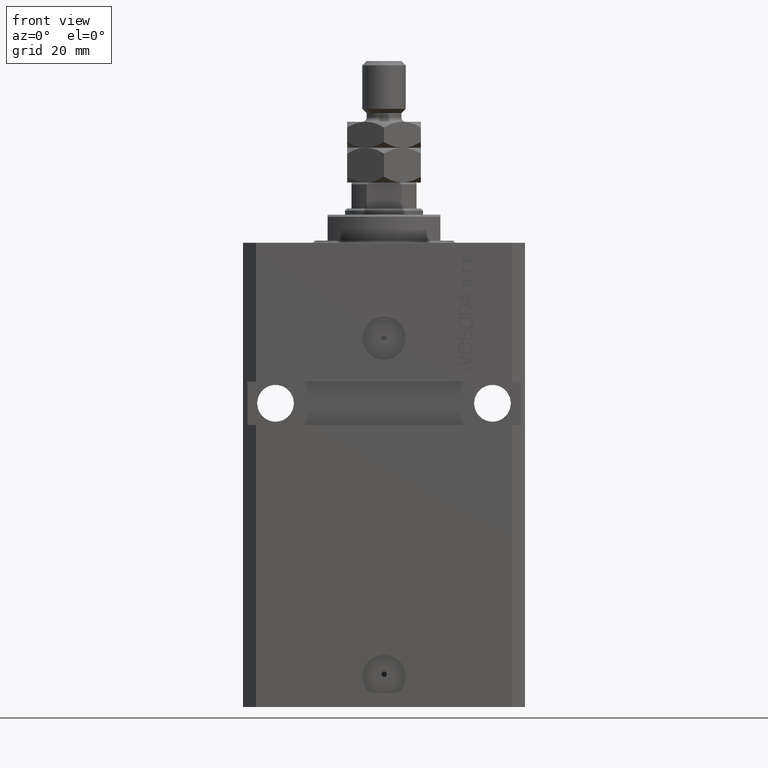
[diagram: clean part render]
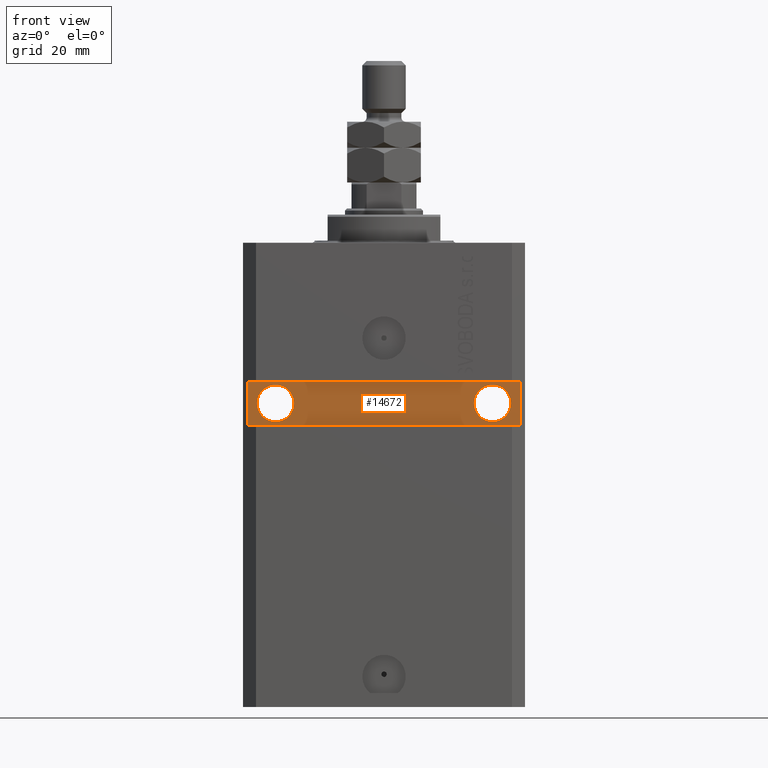
[diagram: same view with one face highlighted and labeled with its STEP entity id]
A machine part, front view. The second image highlights one B-rep face of the part: STEP entity #14672.
In plain terms, the highlighted planar face has unit normal (0, -1, 0).
Its self-contained STEP definition (entity closure, byte-faithful):
#386 = LINE ( 'NONE', #11003, #27683 ) ;
#1856 = DIRECTION ( 'NONE',  ( 1.394545208792185644E-16, -1.000000000000000000, 1.232595164407830946E-32 ) ) ;
#2014 = DIRECTION ( 'NONE',  ( 1.000000000000000000, 1.067522139062765303E-16, 0.000000000000000000 ) ) ;
#3374 = ORIENTED_EDGE ( 'NONE', *, *, #5415, .T. ) ;
#3451 = VERTEX_POINT ( 'NONE', #24864 ) ;
#3814 = CARTESIAN_POINT ( 'NONE',  ( 29.24999999998905764, -20.49999999999949551, -36.99999999999999289 ) ) ;
#4947 = DIRECTION ( 'NONE',  ( 1.394545208792185644E-16, -1.000000000000000000, 1.232595164407830946E-32 ) ) ;
#5081 = ORIENTED_EDGE ( 'NONE', *, *, #18819, .F. ) ;
#5299 = DIRECTION ( 'NONE',  ( 1.000000000000000000, 1.067522139062765303E-16, 1.067522139062765303E-16 ) ) ;
#5415 = EDGE_CURVE ( 'NONE', #42369, #3451, #28432, .T. ) ;
#5555 = FACE_OUTER_BOUND ( 'NONE', #28628, .T. ) ;
#5863 = AXIS2_PLACEMENT_3D ( 'NONE', #20222, #1856, #33006 ) ;
#6180 = VERTEX_POINT ( 'NONE', #3814 ) ;
#6373 = DIRECTION ( 'NONE',  ( 1.101411730780568590E-16, -1.000000000000000000, 0.000000000000000000 ) ) ;
#6611 = VERTEX_POINT ( 'NONE', #12883 ) ;
#7412 = CARTESIAN_POINT ( 'NONE',  ( 31.49999999999651124, -20.49999999999949551, -107.0000000000000000 ) ) ;
#8118 = CARTESIAN_POINT ( 'NONE',  ( 20.75000000001095657, -20.49999999999949551, -36.99999999999999289 ) ) ;
#8625 = ORIENTED_EDGE ( 'NONE', *, *, #41185, .F. ) ;
#9577 = VERTEX_POINT ( 'NONE', #14365 ) ;
#11003 = CARTESIAN_POINT ( 'NONE',  ( -31.49999999999650413, -20.49999999999950262, -107.0000000000000000 ) ) ;
#11381 = AXIS2_PLACEMENT_3D ( 'NONE', #44206, #4947, #29668 ) ;
#12314 = CARTESIAN_POINT ( 'NONE',  ( -20.75000000000621014, -20.49999999999950262, -37.00000000000000000 ) ) ;
#12883 = CARTESIAN_POINT ( 'NONE',  ( -31.49999999999650413, -20.49999999999949907, -41.99999999999999289 ) ) ;
#13245 = AXIS2_PLACEMENT_3D ( 'NONE', #41769, #34284, #2014 ) ;
#13350 = VERTEX_POINT ( 'NONE', #21634 ) ;
#13581 = DIRECTION ( 'NONE',  ( 1.000000000000000000, 0.000000000000000000, 0.000000000000000000 ) ) ;
#14136 = AXIS2_PLACEMENT_3D ( 'NONE', #31231, #45529, #13581 ) ;
#14365 = CARTESIAN_POINT ( 'NONE',  ( -29.24999999999377920, -20.49999999999950262, -37.00000000000000000 ) ) ;
#14672 = ADVANCED_FACE ( 'NONE', ( #23467, #37795, #5555 ), #19921, .T. ) ;
#15441 = DIRECTION ( 'NONE',  ( 0.000000000000000000, 0.000000000000000000, -1.000000000000000000 ) ) ;
#15812 = ORIENTED_EDGE ( 'NONE', *, *, #29278, .T. ) ;
#18819 = EDGE_CURVE ( 'NONE', #6611, #3451, #386, .T. ) ;
#19021 = EDGE_CURVE ( 'NONE', #41104, #6180, #38912, .T. ) ;
#19346 = EDGE_CURVE ( 'NONE', #9577, #41558, #38174, .T. ) ;
#19583 = VECTOR ( 'NONE', #5299, 1000.000000000000000 ) ;
#19921 = PLANE ( 'NONE',  #13245 ) ;
#20222 = CARTESIAN_POINT ( 'NONE',  ( 25.00000000000000711, -20.49999999999949551, -36.99999999999999289 ) ) ;
#20508 = CARTESIAN_POINT ( 'NONE',  ( -24.99999999999999289, -20.49999999999950262, -37.00000000000000000 ) ) ;
#21634 = CARTESIAN_POINT ( 'NONE',  ( 31.49999999999650413, -20.49999999999949196, -41.99999999999998579 ) ) ;
#23467 = FACE_BOUND ( 'NONE', #26965, .T. ) ;
#24864 = CARTESIAN_POINT ( 'NONE',  ( -31.49999999999650413, -20.49999999999950262, -32.00000000000000000 ) ) ;
#26034 = ORIENTED_EDGE ( 'NONE', *, *, #19346, .F. ) ;
#26445 = CARTESIAN_POINT ( 'NONE',  ( 31.49999999999651124, -20.49999999999949196, -32.00000000000000711 ) ) ;
#26965 = EDGE_LOOP ( 'NONE', ( #28115, #36923 ) ) ;
#27661 = EDGE_LOOP ( 'NONE', ( #36488, #26034 ) ) ;
#27683 = VECTOR ( 'NONE', #39922, 1000.000000000000000 ) ;
#27952 = CIRCLE ( 'NONE', #11381, 4.249999999989050536 ) ;
#28115 = ORIENTED_EDGE ( 'NONE', *, *, #32142, .F. ) ;
#28432 = LINE ( 'NONE', #35501, #34143 ) ;
#28628 = EDGE_LOOP ( 'NONE', ( #3374, #5081, #15812, #8625 ) ) ;
#29278 = EDGE_CURVE ( 'NONE', #6611, #13350, #30958, .T. ) ;
#29668 = DIRECTION ( 'NONE',  ( 1.000000000000000000, 0.000000000000000000, 0.000000000000000000 ) ) ;
#30958 = LINE ( 'NONE', #41512, #19583 ) ;
#31231 = CARTESIAN_POINT ( 'NONE',  ( -24.99999999999999289, -20.49999999999950262, -37.00000000000000000 ) ) ;
#31494 = CIRCLE ( 'NONE', #46459, 4.249999999993782751 ) ;
#31964 = DIRECTION ( 'NONE',  ( -1.000000000000000000, -1.067522139062765303E-16, 1.067522139062765303E-16 ) ) ;
#32142 = EDGE_CURVE ( 'NONE', #6180, #41104, #27952, .T. ) ;
#33006 = DIRECTION ( 'NONE',  ( 1.000000000000000000, 0.000000000000000000, 0.000000000000000000 ) ) ;
#34143 = VECTOR ( 'NONE', #31964, 1000.000000000000000 ) ;
#34284 = DIRECTION ( 'NONE',  ( 1.067522139062765303E-16, -1.000000000000000000, 0.000000000000000000 ) ) ;
#35117 = EDGE_CURVE ( 'NONE', #41558, #9577, #31494, .T. ) ;
#35501 = CARTESIAN_POINT ( 'NONE',  ( 32.49999999999650413, -20.49999999999949196, -32.00000000000000711 ) ) ;
#36488 = ORIENTED_EDGE ( 'NONE', *, *, #35117, .F. ) ;
#36923 = ORIENTED_EDGE ( 'NONE', *, *, #19021, .F. ) ;
#37795 = FACE_BOUND ( 'NONE', #27661, .T. ) ;
#38174 = CIRCLE ( 'NONE', #14136, 4.249999999993782751 ) ;
#38912 = CIRCLE ( 'NONE', #5863, 4.249999999989050536 ) ;
#39635 = LINE ( 'NONE', #7412, #42910 ) ;
#39922 = DIRECTION ( 'NONE',  ( 0.000000000000000000, 0.000000000000000000, 1.000000000000000000 ) ) ;
#41104 = VERTEX_POINT ( 'NONE', #8118 ) ;
#41185 = EDGE_CURVE ( 'NONE', #42369, #13350, #39635, .T. ) ;
#41512 = CARTESIAN_POINT ( 'NONE',  ( -32.49999999999650413, -20.49999999999949907, -41.99999999999999289 ) ) ;
#41558 = VERTEX_POINT ( 'NONE', #12314 ) ;
#41769 = CARTESIAN_POINT ( 'NONE',  ( 2.166708070385810581E-15, -20.49999999999949907, 0.000000000000000000 ) ) ;
#42369 = VERTEX_POINT ( 'NONE', #26445 ) ;
#42910 = VECTOR ( 'NONE', #15441, 1000.000000000000000 ) ;
#44206 = CARTESIAN_POINT ( 'NONE',  ( 25.00000000000000711, -20.49999999999949551, -36.99999999999999289 ) ) ;
#45392 = DIRECTION ( 'NONE',  ( 1.000000000000000000, 0.000000000000000000, 0.000000000000000000 ) ) ;
#45529 = DIRECTION ( 'NONE',  ( 1.101411730780568590E-16, -1.000000000000000000, 0.000000000000000000 ) ) ;
#46459 = AXIS2_PLACEMENT_3D ( 'NONE', #20508, #6373, #45392 ) ;